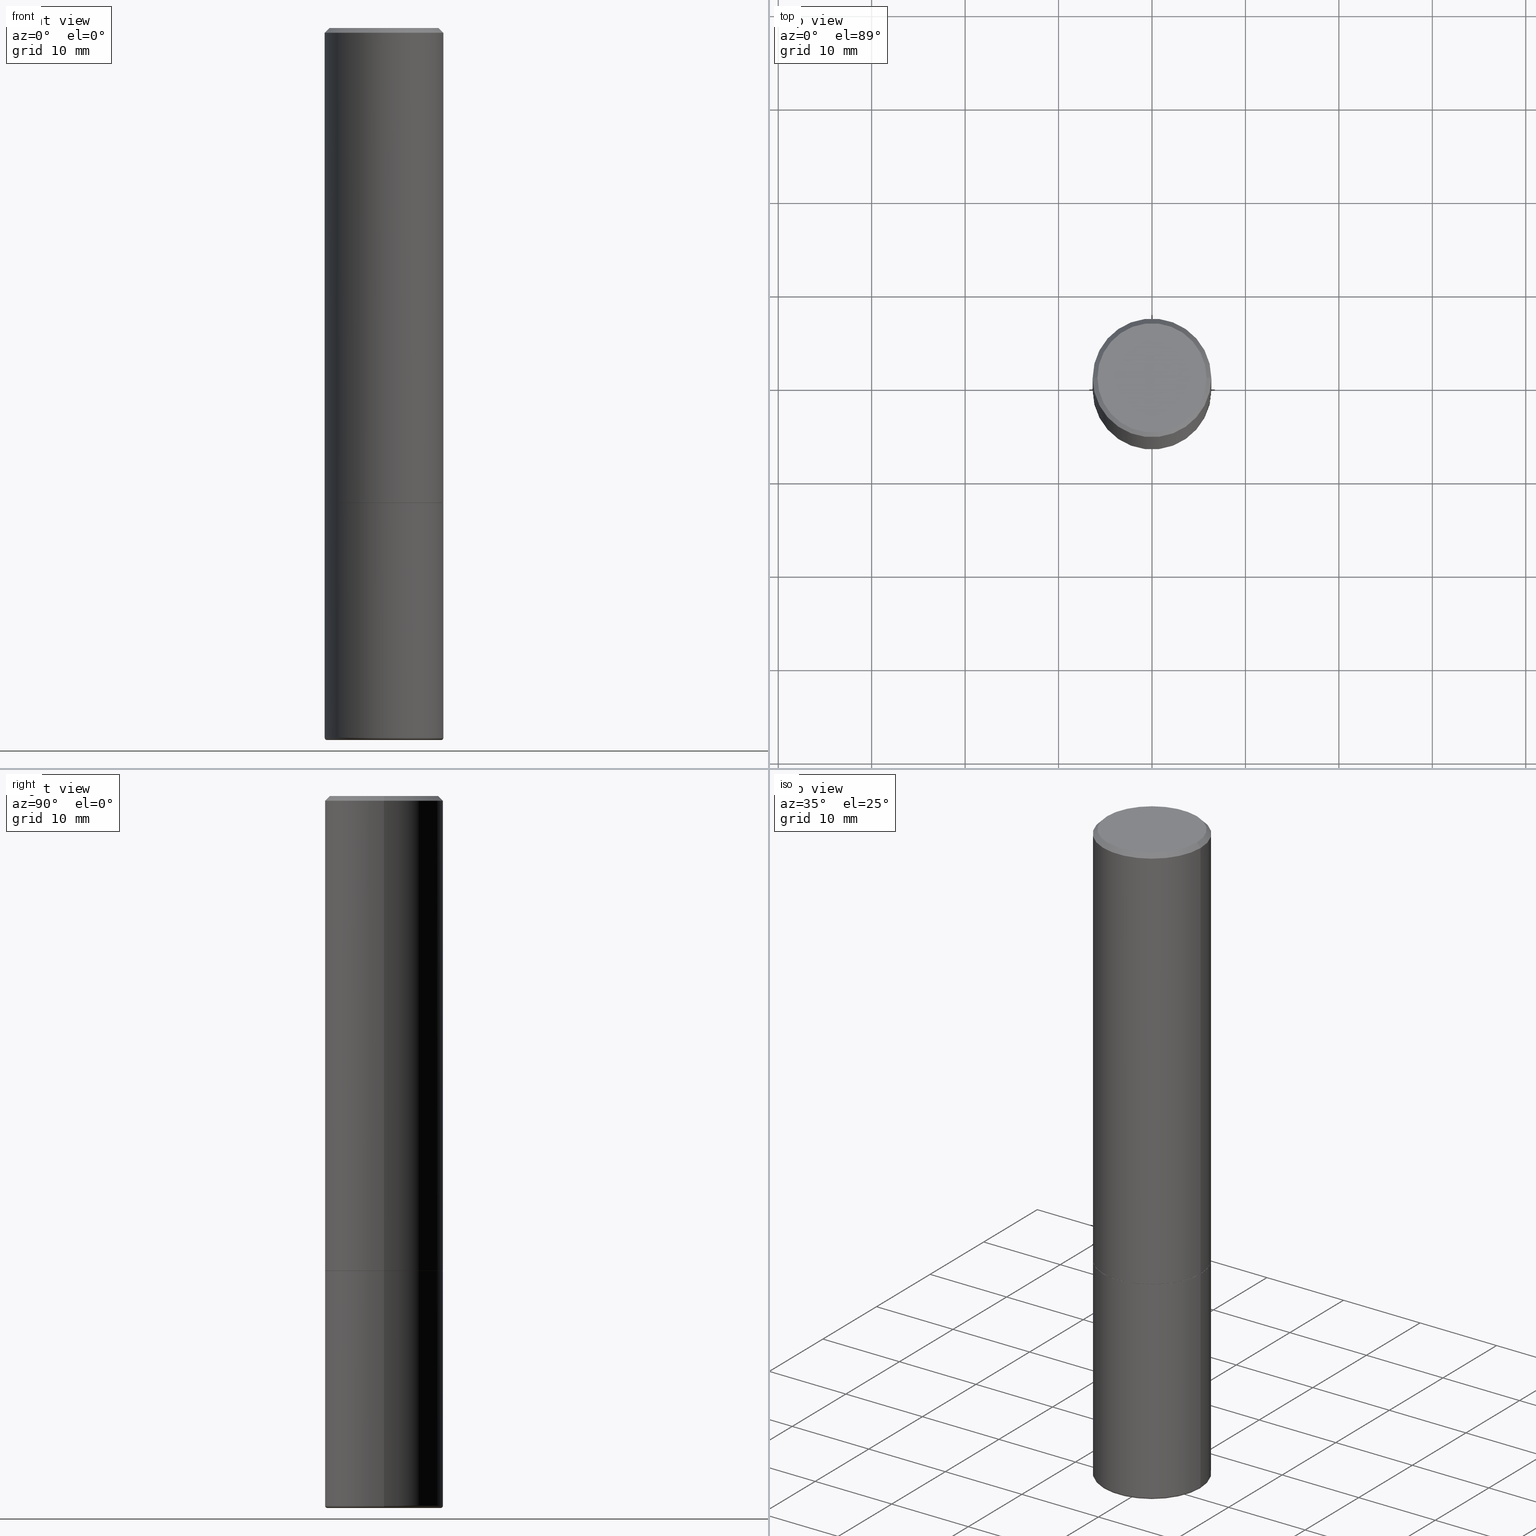
[diagram: canonical four-view strip — front | top / right | iso, engineering-drawing reading convention]
A machine part, canonical four-view strip (front | top / right | iso — engineering-drawing reading convention). The complete STEP part file that produces these views, byte-faithful:
ISO-10303-21;
HEADER;
FILE_DESCRIPTION (( 'STEP AP203' ),
    '1' );
FILE_NAME ('38836.STEP',
    '2024-03-03T15:59:03',
    ( '' ),
    ( '' ),
    'SwSTEP 2.0',
    'SolidWorks 2023',
    '' );
FILE_SCHEMA (( 'CONFIG_CONTROL_DESIGN' ));
ENDSEC;

DATA;
#1 = CARTESIAN_POINT ( 'NONE',  ( 4.890937612370273754E-29, -6.982962677686291954E-15, -2.000000000000000444 ) ) ;
#2 = PRODUCT_DEFINITION_SHAPE ( 'NONE', 'NONE',  #297 ) ;
#3 = FACE_OUTER_BOUND ( 'NONE', #365, .T. ) ;
#4 = DIRECTION ( 'NONE',  ( -2.445468806185136597E-29, 3.491481338843145583E-15, 1.000000000000000000 ) ) ;
#5 = CLOSED_SHELL ( 'NONE', ( #229, #79, #95, #153, #303, #236, #38, #354 ) ) ;
#6 = AXIS2_PLACEMENT_3D ( 'NONE', #289, #195, #256 ) ;
#7 = ORIENTED_EDGE ( 'NONE', *, *, #336, .T. ) ;
#8 = AXIS2_PLACEMENT_3D ( 'NONE', #138, #262, #204 ) ;
#9 = CARTESIAN_POINT ( 'NONE',  ( -0.2500000000000000000, 1.776356839400250465E-15, -1.229733772563726445E-29 ) ) ;
#10 = DIRECTION ( 'NONE',  ( 1.000000000000000000, -6.982962677686268288E-15, 0.000000000000000000 ) ) ;
#11 = ORIENTED_EDGE ( 'NONE', *, *, #242, .F. ) ;
#12 = PRODUCT_RELATED_PRODUCT_CATEGORY ( 'detail', '', ( #43 ) ) ;
#13 = PLANE ( 'NONE',  #288 ) ;
#14 = AXIS2_PLACEMENT_3D ( 'NONE', #328, #264, #72 ) ;
#15 = PERSON_AND_ORGANIZATION ( #377, #273 ) ;
#16 = DIRECTION ( 'NONE',  ( 1.000000000000000000, -6.982962677686265922E-15, 4.876176775795935793E-29 ) ) ;
#17 = COORDINATED_UNIVERSAL_TIME_OFFSET ( 5, 0, .BEHIND. ) ;
#18 = EDGE_LOOP ( 'NONE', ( #125, #319 ) ) ;
#19 = ORIENTED_EDGE ( 'NONE', *, *, #344, .F. ) ;
#20 = EDGE_CURVE ( 'NONE', #338, #298, #185, .T. ) ;
#21 = APPROVAL_ROLE ( '' ) ;
#22 = VERTEX_POINT ( 'NONE', #251 ) ;
#23 = DIRECTION ( 'NONE',  ( -2.445468806185136597E-29, 3.491481338843145583E-15, 1.000000000000000000 ) ) ;
#24 = ADVANCED_FACE ( 'NONE', ( #183 ), #92, .F. ) ;
#25 = DIRECTION ( 'NONE',  ( -1.000000000000000000, 6.982962677686266711E-15, 0.000000000000000000 ) ) ;
#26 = CIRCLE ( 'NONE', #300, 0.2299999999999999267 ) ;
#27 = COORDINATED_UNIVERSAL_TIME_OFFSET ( 5, 0, .BEHIND. ) ;
#28 = CC_DESIGN_APPROVAL ( #58, ( #334 ) ) ;
#29 = FACE_OUTER_BOUND ( 'NONE', #86, .T. ) ;
#30 = ADVANCED_FACE ( 'NONE', ( #340 ), #40, .T. ) ;
#31 = FACE_OUTER_BOUND ( 'NONE', #191, .T. ) ;
#32 = APPROVAL_PERSON_ORGANIZATION ( #182, #58, #211 ) ;
#33 = LINE ( 'NONE', #237, #62 ) ;
#34 = ORIENTED_EDGE ( 'NONE', *, *, #349, .T. ) ;
#35 = DIRECTION ( 'NONE',  ( 1.000000000000000000, -6.982962677686267499E-15, 4.876176775795936353E-29 ) ) ;
#36 = ORIENTED_EDGE ( 'NONE', *, *, #224, .T. ) ;
#37 = CARTESIAN_POINT ( 'NONE',  ( 7.311951730493558245E-29, -1.043952920314100628E-14, -2.990000000000000213 ) ) ;
#38 = ADVANCED_FACE ( 'NONE', ( #278 ), #13, .F. ) ;
#39 = LINE ( 'NONE', #110, #203 ) ;
#40 = TOROIDAL_SURFACE ( 'NONE', #68, 0.2399999999999999911, 0.009999999999999807654 ) ;
#41 = ORIENTED_EDGE ( 'NONE', *, *, #408, .T. ) ;
#42 = FACE_OUTER_BOUND ( 'NONE', #18, .T. ) ;
#43 = PRODUCT ( '38836', '38836', '', ( #119 ) ) ;
#44 = APPROVAL ( #148, 'UNSPECIFIED' ) ;
#45 = EDGE_LOOP ( 'NONE', ( #370, #139 ) ) ;
#46 = DIRECTION ( 'NONE',  ( 0.000000000000000000, 0.000000000000000000, 1.000000000000000000 ) ) ;
#47 = VERTEX_POINT ( 'NONE', #152 ) ;
#48 = CIRCLE ( 'NONE', #411, 0.2400000000000000466 ) ;
#49 = ORIENTED_EDGE ( 'NONE', *, *, #381, .T. ) ;
#50 = PERSON_AND_ORGANIZATION ( #377, #273 ) ;
#51 = EDGE_LOOP ( 'NONE', ( #248, #307, #243, #81 ) ) ;
#52 = EDGE_CURVE ( 'NONE', #268, #403, #101, .T. ) ;
#53 = DIRECTION ( 'NONE',  ( 1.000000000000000000, 0.000000000000000000, 0.000000000000000000 ) ) ;
#54 = VERTEX_POINT ( 'NONE', #98 ) ;
#55 = CIRCLE ( 'NONE', #94, 0.2500000000000000000 ) ;
#56 = DATE_AND_TIME ( #163, #166 ) ;
#57 = DIRECTION ( 'NONE',  ( -2.445468806185136597E-29, 3.491481338843145583E-15, 1.000000000000000000 ) ) ;
#58 = APPROVAL ( #306, 'UNSPECIFIED' ) ;
#59 = CARTESIAN_POINT ( 'NONE',  ( 0.000000000000000000, 0.000000000000000000, 0.000000000000000000 ) ) ;
#60 = DIRECTION ( 'NONE',  ( -1.000000000000000000, 6.982962677686266711E-15, 0.000000000000000000 ) ) ;
#61 = APPLICATION_CONTEXT ( 'configuration controlled 3d designs of mechanical parts and assemblies' ) ;
#62 = VECTOR ( 'NONE', #361, 39.37007874015748143 ) ;
#63 = APPROVAL_DATE_TIME ( #56, #71 ) ;
#64 = CARTESIAN_POINT ( 'NONE',  ( 4.890937612370273754E-29, -6.982962677686291954E-15, -2.000000000000000444 ) ) ;
#65 = DIRECTION ( 'NONE',  ( -0.7071067811866078578, 7.493145998870571886E-15, 0.7071067811864871766 ) ) ;
#66 = CC_DESIGN_DATE_AND_TIME_ASSIGNMENT ( #124, #406, ( #297 ) ) ;
#67 = DIRECTION ( 'NONE',  ( 1.000000000000000000, -6.982962677686268288E-15, 0.000000000000000000 ) ) ;
#68 = AXIS2_PLACEMENT_3D ( 'NONE', #187, #121, #151 ) ;
#69 = CARTESIAN_POINT ( 'NONE',  ( -0.2500000000000000000, -6.934889101013398653E-15, -2.000000000000000444 ) ) ;
#70 = EDGE_LOOP ( 'NONE', ( #159, #19 ) ) ;
#71 = APPROVAL ( #255, 'UNSPECIFIED' ) ;
#72 = DIRECTION ( 'NONE',  ( -1.000000000000000000, 6.982962677686265922E-15, -4.876176775795935793E-29 ) ) ;
#73 = ORIENTED_EDGE ( 'NONE', *, *, #368, .T. ) ;
#74 = CARTESIAN_POINT ( 'NONE',  ( 0.000000000000000000, 0.000000000000000000, 0.000000000000000000 ) ) ;
#75 = CARTESIAN_POINT ( 'NONE',  ( 0.000000000000000000, 0.000000000000000000, 0.000000000000000000 ) ) ;
#76 = AXIS2_PLACEMENT_3D ( 'NONE', #64, #169, #291 ) ;
#77 = CIRCLE ( 'NONE', #405, 0.2400000000000000466 ) ;
#78 = VERTEX_POINT ( 'NONE', #382 ) ;
#79 = ADVANCED_FACE ( 'NONE', ( #253 ), #97, .T. ) ;
#80 = PERSON_AND_ORGANIZATION ( #377, #273 ) ;
#81 = ORIENTED_EDGE ( 'NONE', *, *, #172, .F. ) ;
#82 = APPROVAL_DATE_TIME ( #113, #44 ) ;
#83 = ORIENTED_EDGE ( 'NONE', *, *, #349, .F. ) ;
#84 = PERSON_AND_ORGANIZATION_ROLE ( 'design_supplier' ) ;
#85 = CLOSED_SHELL ( 'NONE', ( #271, #197, #24, #392, #30, #126 ) ) ;
#86 = EDGE_LOOP ( 'NONE', ( #111, #331 ) ) ;
#87 = AXIS2_PLACEMENT_3D ( 'NONE', #353, #225, #167 ) ;
#88 = APPROVAL_PERSON_ORGANIZATION ( #213, #71, #21 ) ;
#89 = DATE_TIME_ROLE ( 'classification_date' ) ;
#90 = ORIENTED_EDGE ( 'NONE', *, *, #160, .F. ) ;
#91 = DIRECTION ( 'NONE',  ( 1.000000000000000000, -6.982962677686266711E-15, 0.000000000000000000 ) ) ;
#92 = PLANE ( 'NONE',  #142 ) ;
#93 = FACE_OUTER_BOUND ( 'NONE', #329, .T. ) ;
#94 = AXIS2_PLACEMENT_3D ( 'NONE', #360, #295, #108 ) ;
#95 = ADVANCED_FACE ( 'NONE', ( #380 ), #259, .T. ) ;
#96 = SECURITY_CLASSIFICATION ( '', '', #400 ) ;
#97 = CYLINDRICAL_SURFACE ( 'NONE', #383, 0.2500000000000001110 ) ;
#98 = CARTESIAN_POINT ( 'NONE',  ( 0.2299999999999999267, -1.681434332853598617E-15, 4.695363739111602110E-17 ) ) ;
#99 = MANIFOLD_SOLID_BREP ( 'Body-Move/Copy2[2]', #5 ) ;
#100 = DIRECTION ( 'NONE',  ( -2.445468806185136597E-29, 3.491481338843145583E-15, 1.000000000000000000 ) ) ;
#101 = CIRCLE ( 'NONE', #158, 0.009999999999999790307 ) ;
#102 = LOCAL_TIME ( 10, 59, 3.000000000000000000, #157 ) ;
#103 = EDGE_CURVE ( 'NONE', #338, #268, #48, .T. ) ;
#104 = CARTESIAN_POINT ( 'NONE',  ( 4.890937612370287172E-31, -6.982962677686310098E-17, -0.02000000000000005593 ) ) ;
#105 = CARTESIAN_POINT ( 'NONE',  ( 0.2489999999999999991, -8.721720384430172617E-15, -2.000000000000000444 ) ) ;
#106 = DIRECTION ( 'NONE',  ( -2.445468806185136597E-29, 3.491481338843145583E-15, 1.000000000000000000 ) ) ;
#107 = EDGE_CURVE ( 'NONE', #54, #47, #26, .T. ) ;
#108 = DIRECTION ( 'NONE',  ( 1.000000000000000000, -6.982962677686266711E-15, 0.000000000000000000 ) ) ;
#109 = ORIENTED_EDGE ( 'NONE', *, *, #368, .F. ) ;
#110 = CARTESIAN_POINT ( 'NONE',  ( -0.2500000000000001110, 1.776356839400251254E-15, -1.229733772563727146E-29 ) ) ;
#111 = ORIENTED_EDGE ( 'NONE', *, *, #413, .F. ) ;
#112 = DIRECTION ( 'NONE',  ( -2.445468806185136597E-29, 3.491481338843145583E-15, 1.000000000000000000 ) ) ;
#113 = DATE_AND_TIME ( #154, #282 ) ;
#114 = AXIS2_PLACEMENT_3D ( 'NONE', #75, #235, #35 ) ;
#115 = ORIENTED_EDGE ( 'NONE', *, *, #186, .F. ) ;
#116 = PERSON_AND_ORGANIZATION ( #377, #273 ) ;
#117 = DIRECTION ( 'NONE',  ( -6.982962677686266711E-15, -1.000000000000000000, 3.491481338843145583E-15 ) ) ;
#118 = EDGE_CURVE ( 'NONE', #389, #22, #404, .T. ) ;
#119 = MECHANICAL_CONTEXT ( 'NONE', #193, 'mechanical' ) ;
#120 = AXIS2_PLACEMENT_3D ( 'NONE', #375, #217, #210 ) ;
#121 = DIRECTION ( 'NONE',  ( -2.445468806185136597E-29, 3.491481338843145583E-15, 1.000000000000000000 ) ) ;
#122 = CIRCLE ( 'NONE', #6, 0.2500000000000000000 ) ;
#123 = AXIS2_PLACEMENT_3D ( 'NONE', #74, #202, #326 ) ;
#124 = DATE_AND_TIME ( #209, #102 ) ;
#125 = ORIENTED_EDGE ( 'NONE', *, *, #180, .T. ) ;
#126 = ADVANCED_FACE ( 'NONE', ( #29 ), #293, .T. ) ;
#127 = ORIENTED_EDGE ( 'NONE', *, *, #186, .T. ) ;
#128 = LINE ( 'NONE', #131, #395 ) ;
#129 = CONICAL_SURFACE ( 'NONE', #135, 0.2500000000000000000, 0.7853981633974472798 ) ;
#130 = CC_DESIGN_APPROVAL ( #71, ( #96 ) ) ;
#131 = CARTESIAN_POINT ( 'NONE',  ( 0.2500000000000001110, -1.745740669421567664E-15, 1.219044193948984649E-29 ) ) ;
#132 = LINE ( 'NONE', #355, #350 ) ;
#133 = DIMENSIONAL_EXPONENTS ( 1.000000000000000000, 0.000000000000000000, 0.000000000000000000, 0.000000000000000000, 0.000000000000000000, 0.000000000000000000, 0.000000000000000000 ) ;
#134 = DIRECTION ( 'NONE',  ( -2.445468806185136597E-29, 3.491481338843145583E-15, 1.000000000000000000 ) ) ;
#135 = AXIS2_PLACEMENT_3D ( 'NONE', #104, #418, #25 ) ;
#136 = APPROVAL_PERSON_ORGANIZATION ( #50, #44, #270 ) ;
#137 = CARTESIAN_POINT ( 'NONE',  ( -0.2500000000000002220, -1.748293572161901516E-15, -1.999000000000000110 ) ) ;
#138 = CARTESIAN_POINT ( 'NONE',  ( 4.890937612370287172E-31, -6.982962677686310098E-17, -0.02000000000000005593 ) ) ;
#139 = ORIENTED_EDGE ( 'NONE', *, *, #249, .T. ) ;
#140 = CARTESIAN_POINT ( 'NONE',  ( 4.888492143564088712E-29, -6.979471196347448158E-15, -1.999000000000000110 ) ) ;
#141 = VERTEX_POINT ( 'NONE', #137 ) ;
#142 = AXIS2_PLACEMENT_3D ( 'NONE', #155, #348, #373 ) ;
#143 = FACE_OUTER_BOUND ( 'NONE', #144, .T. ) ;
#144 = EDGE_LOOP ( 'NONE', ( #11, #367, #41, #161 ) ) ;
#145 = LINE ( 'NONE', #9, #371 ) ;
#146 = ORIENTED_EDGE ( 'NONE', *, *, #20, .T. ) ;
#147 = EDGE_CURVE ( 'NONE', #333, #78, #128, .T. ) ;
#148 = APPROVAL_STATUS ( 'not_yet_approved' ) ;
#149 = AXIS2_PLACEMENT_3D ( 'NONE', #1, #4, #330 ) ;
#150 =( GEOMETRIC_REPRESENTATION_CONTEXT ( 3 ) GLOBAL_UNCERTAINTY_ASSIGNED_CONTEXT ( ( #274 ) ) GLOBAL_UNIT_ASSIGNED_CONTEXT ( ( #397, #192, #281 ) ) REPRESENTATION_CONTEXT ( 'NONE', 'WORKASPACE' ) );
#151 = DIRECTION ( 'NONE',  ( 1.000000000000000000, -6.982962677686269077E-15, 4.883557194083114022E-29 ) ) ;
#152 = CARTESIAN_POINT ( 'NONE',  ( -0.2299999999999999267, 1.640996229256272519E-15, 4.695363739109317495E-17 ) ) ;
#153 = ADVANCED_FACE ( 'NONE', ( #385 ), #129, .T. ) ;
#154 = CALENDAR_DATE ( 2024, 3, 3 ) ;
#155 = CARTESIAN_POINT ( 'NONE',  ( 4.890937612370273754E-29, -6.982962677686291954E-15, -2.000000000000000444 ) ) ;
#156 = DESIGN_CONTEXT ( 'detailed design', #61, 'design' ) ;
#157 = COORDINATED_UNIVERSAL_TIME_OFFSET ( 5, 0, .BEHIND. ) ;
#158 = AXIS2_PLACEMENT_3D ( 'NONE', #401, #117, #379 ) ;
#159 = ORIENTED_EDGE ( 'NONE', *, *, #118, .F. ) ;
#160 = EDGE_CURVE ( 'NONE', #389, #333, #132, .T. ) ;
#161 = ORIENTED_EDGE ( 'NONE', *, *, #249, .F. ) ;
#162 = CARTESIAN_POINT ( 'NONE',  ( -1.148236555768741665E-45, 1.639377487418492057E-31, 4.695363739110452099E-17 ) ) ;
#163 = CALENDAR_DATE ( 2024, 3, 3 ) ;
#164 = DIRECTION ( 'NONE',  ( 0.7071067811866078578, -2.468850131082888544E-15, 0.7071067811864871766 ) ) ;
#165 = CONICAL_SURFACE ( 'NONE', #280, 0.2489999999999999991, 0.7853981633975336552 ) ;
#166 = LOCAL_TIME ( 10, 59, 3.000000000000000000, #27 ) ;
#167 = DIRECTION ( 'NONE',  ( 1.000000000000000000, -6.982962677686267499E-15, 4.875813741439101456E-29 ) ) ;
#168 = CC_DESIGN_DATE_AND_TIME_ASSIGNMENT ( #369, #89, ( #96 ) ) ;
#169 = DIRECTION ( 'NONE',  ( -2.445468806185136597E-29, 3.491481338843145583E-15, 1.000000000000000000 ) ) ;
#170 = CARTESIAN_POINT ( 'NONE',  ( 4.890937612370273754E-29, -6.982962677686291954E-15, -2.000000000000000444 ) ) ;
#171 = AXIS2_PLACEMENT_3D ( 'NONE', #287, #351, #60 ) ;
#172 = EDGE_CURVE ( 'NONE', #298, #403, #122, .T. ) ;
#173 = CARTESIAN_POINT ( 'NONE',  ( 0.000000000000000000, 0.000000000000000000, 0.000000000000000000 ) ) ;
#174 = LINE ( 'NONE', #230, #294 ) ;
#175 = EDGE_LOOP ( 'NONE', ( #49, #284, #189, #233 ) ) ;
#176 = DIRECTION ( 'NONE',  ( 1.000000000000000000, -6.982962677686266711E-15, 0.000000000000000000 ) ) ;
#177 = ORIENTED_EDGE ( 'NONE', *, *, #336, .F. ) ;
#178 = AXIS2_PLACEMENT_3D ( 'NONE', #205, #106, #10 ) ;
#179 = DIRECTION ( 'NONE',  ( -2.445468806185136877E-29, 3.491481338843145188E-15, 1.000000000000000000 ) ) ;
#180 = EDGE_CURVE ( 'NONE', #47, #54, #266, .T. ) ;
#181 = CARTESIAN_POINT ( 'NONE',  ( 0.2400000000000000466, -1.215035505917413973E-14, -2.999999999999999556 ) ) ;
#182 = PERSON_AND_ORGANIZATION ( #377, #273 ) ;
#183 = FACE_OUTER_BOUND ( 'NONE', #45, .T. ) ;
#184 = COORDINATED_UNIVERSAL_TIME_OFFSET ( 5, 0, .BEHIND. ) ;
#185 = CIRCLE ( 'NONE', #120, 0.009999999999999790307 ) ;
#186 = EDGE_CURVE ( 'NONE', #54, #78, #290, .T. ) ;
#187 = CARTESIAN_POINT ( 'NONE',  ( 7.311951730493558245E-29, -1.043952920314100628E-14, -2.990000000000000213 ) ) ;
#188 = DATE_AND_TIME ( #190, #254 ) ;
#189 = ORIENTED_EDGE ( 'NONE', *, *, #219, .F. ) ;
#190 = CALENDAR_DATE ( 2024, 3, 3 ) ;
#191 = EDGE_LOOP ( 'NONE', ( #312, #409, #310, #315 ) ) ;
#192 =( NAMED_UNIT ( * ) PLANE_ANGLE_UNIT ( ) SI_UNIT ( $, .RADIAN. ) );
#193 = APPLICATION_CONTEXT ( 'configuration controlled 3d designs of mechanical parts and assemblies' ) ;
#194 = AXIS2_PLACEMENT_3D ( 'NONE', #140, #357, #67 ) ;
#195 = DIRECTION ( 'NONE',  ( -2.445468806185136597E-29, 3.491481338843145583E-15, 1.000000000000000000 ) ) ;
#196 = CARTESIAN_POINT ( 'NONE',  ( 7.336406418555408669E-29, -1.047444401652943478E-14, -2.999999999999999556 ) ) ;
#197 = ADVANCED_FACE ( 'NONE', ( #228 ), #207, .T. ) ;
#198 = DIRECTION ( 'NONE',  ( 1.000000000000000000, -6.982962677686266711E-15, 0.000000000000000000 ) ) ;
#199 = CIRCLE ( 'NONE', #194, 0.2500000000000002220 ) ;
#200 = DIRECTION ( 'NONE',  ( 1.000000000000000000, -6.982962677686269077E-15, 4.883557194083114022E-29 ) ) ;
#201 = CARTESIAN_POINT ( 'NONE',  ( 4.890937612370273754E-29, -6.982962677686291954E-15, -2.000000000000000444 ) ) ;
#202 = DIRECTION ( 'NONE',  ( -2.445468806185136597E-29, 3.491481338843145583E-15, 1.000000000000000000 ) ) ;
#203 = VECTOR ( 'NONE', #358, 39.37007874015748143 ) ;
#204 = DIRECTION ( 'NONE',  ( 1.000000000000000000, -6.982962677686266711E-15, 0.000000000000000000 ) ) ;
#205 = CARTESIAN_POINT ( 'NONE',  ( 4.888492143564088712E-29, -6.979471196347448158E-15, -1.999000000000000110 ) ) ;
#206 = PLANE ( 'NONE',  #14 ) ;
#207 = TOROIDAL_SURFACE ( 'NONE', #322, 0.2399999999999999911, 0.009999999999999807654 ) ;
#208 = DIRECTION ( 'NONE',  ( 1.000000000000000000, -6.982962677686266711E-15, 4.876176775795935793E-29 ) ) ;
#209 = CALENDAR_DATE ( 2024, 3, 3 ) ;
#210 = DIRECTION ( 'NONE',  ( -1.000000000000000000, 7.105427357600978193E-15, 0.000000000000000000 ) ) ;
#211 = APPROVAL_ROLE ( '' ) ;
#212 = DIRECTION ( 'NONE',  ( -2.438088387897960049E-29, 3.491481338843145188E-15, 1.000000000000000000 ) ) ;
#213 = PERSON_AND_ORGANIZATION ( #377, #273 ) ;
#214 = AXIS2_PLACEMENT_3D ( 'NONE', #173, #112, #208 ) ;
#215 = CC_DESIGN_APPROVAL ( #44, ( #297 ) ) ;
#216 = ORIENTED_EDGE ( 'NONE', *, *, #147, .F. ) ;
#217 = DIRECTION ( 'NONE',  ( 7.105427357601001859E-15, 1.000000000000000000, -3.491481338843145583E-15 ) ) ;
#218 = ORIENTED_EDGE ( 'NONE', *, *, #292, .T. ) ;
#219 = EDGE_CURVE ( 'NONE', #245, #362, #247, .T. ) ;
#220 = AXIS2_PLACEMENT_3D ( 'NONE', #352, #258, #410 ) ;
#221 = DIRECTION ( 'NONE',  ( -2.445468806185136597E-29, 3.491481338843145583E-15, 1.000000000000000000 ) ) ;
#222 = AXIS2_PLACEMENT_3D ( 'NONE', #37, #386, #299 ) ;
#223 = DIRECTION ( 'NONE',  ( 1.000000000000000000, -6.982962677686267499E-15, 4.875813741439101456E-29 ) ) ;
#224 = EDGE_CURVE ( 'NONE', #22, #141, #415, .T. ) ;
#225 = DIRECTION ( 'NONE',  ( -2.445468806185136597E-29, 3.491481338843145583E-15, 1.000000000000000000 ) ) ;
#226 = DIRECTION ( 'NONE',  ( 1.000000000000000000, -6.982962677686266711E-15, 0.000000000000000000 ) ) ;
#227 = VECTOR ( 'NONE', #65, 39.37007874015748143 ) ;
#228 = FACE_OUTER_BOUND ( 'NONE', #265, .T. ) ;
#229 = ADVANCED_FACE ( 'NONE', ( #93 ), #165, .T. ) ;
#230 = CARTESIAN_POINT ( 'NONE',  ( 0.2500000000000000000, -1.745740669421566678E-15, 1.219044193948983948E-29 ) ) ;
#231 = MANIFOLD_SOLID_BREP ( 'Body-Move/Copy2[1]', #85 ) ;
#232 = CYLINDRICAL_SURFACE ( 'NONE', #123, 0.2500000000000000000 ) ;
#233 = ORIENTED_EDGE ( 'NONE', *, *, #408, .F. ) ;
#234 = CIRCLE ( 'NONE', #342, 0.2500000000000000000 ) ;
#235 = DIRECTION ( 'NONE',  ( -2.445468806185136597E-29, 3.491481338843145583E-15, 1.000000000000000000 ) ) ;
#236 = ADVANCED_FACE ( 'NONE', ( #31 ), #378, .T. ) ;
#237 = CARTESIAN_POINT ( 'NONE',  ( -0.2500000000000000000, 1.675911042644703577E-15, -0.02000000000000005593 ) ) ;
#238 = ORIENTED_EDGE ( 'NONE', *, *, #381, .F. ) ;
#239 = CARTESIAN_POINT ( 'NONE',  ( -0.2499999999999998890, -8.663172363740755817E-15, -2.990000000000000213 ) ) ;
#240 = EDGE_LOOP ( 'NONE', ( #398, #127, #7, #250 ) ) ;
#241 = DIRECTION ( 'NONE',  ( -2.445468806185136597E-29, 3.491481338843145583E-15, 1.000000000000000000 ) ) ;
#242 = EDGE_CURVE ( 'NONE', #298, #362, #145, .T. ) ;
#243 = ORIENTED_EDGE ( 'NONE', *, *, #52, .T. ) ;
#244 = PERSON_AND_ORGANIZATION_ROLE ( 'classification_officer' ) ;
#245 = VERTEX_POINT ( 'NONE', #269 ) ;
#246 = APPROVAL_DATE_TIME ( #188, #58 ) ;
#247 = CIRCLE ( 'NONE', #76, 0.2500000000000000000 ) ;
#248 = ORIENTED_EDGE ( 'NONE', *, *, #20, .F. ) ;
#249 = EDGE_CURVE ( 'NONE', #362, #245, #234, .T. ) ;
#250 = ORIENTED_EDGE ( 'NONE', *, *, #292, .F. ) ;
#251 = CARTESIAN_POINT ( 'NONE',  ( -0.2489999999999999991, -5.208412811295419307E-15, -2.000000000000000444 ) ) ;
#252 = CIRCLE ( 'NONE', #8, 0.2500000000000000000 ) ;
#253 = FACE_OUTER_BOUND ( 'NONE', #276, .T. ) ;
#254 = LOCAL_TIME ( 10, 59, 3.000000000000000000, #184 ) ;
#255 = APPROVAL_STATUS ( 'not_yet_approved' ) ;
#256 = DIRECTION ( 'NONE',  ( 1.000000000000000000, -6.982962677686262766E-15, 0.000000000000000000 ) ) ;
#257 = DIRECTION ( 'NONE',  ( 0.7071067811865467956, -7.319954787623254468E-15, -0.7071067811865482389 ) ) ;
#258 = DIRECTION ( 'NONE',  ( 2.438088387897960049E-29, -3.491481338843145188E-15, -1.000000000000000000 ) ) ;
#259 = CONICAL_SURFACE ( 'NONE', #171, 0.2500000000000000000, 0.7853981633974472798 ) ;
#260 = CIRCLE ( 'NONE', #222, 0.2500000000000000000 ) ;
#261 = CARTESIAN_POINT ( 'NONE',  ( 0.2500000000000002220, -8.725211865769017202E-15, -1.999000000000000110 ) ) ;
#262 = DIRECTION ( 'NONE',  ( -2.445468806185136597E-29, 3.491481338843145583E-15, 1.000000000000000000 ) ) ;
#263 = ORIENTED_EDGE ( 'NONE', *, *, #413, .T. ) ;
#264 = DIRECTION ( 'NONE',  ( 2.438088387897960049E-29, -3.491481338843145188E-15, -1.000000000000000000 ) ) ;
#265 = EDGE_LOOP ( 'NONE', ( #263, #146, #238, #391 ) ) ;
#266 = CIRCLE ( 'NONE', #87, 0.2299999999999999267 ) ;
#267 = CARTESIAN_POINT ( 'NONE',  ( 0.2499999999999998890, -1.218526987256257138E-14, -2.990000000000000213 ) ) ;
#268 = VERTEX_POINT ( 'NONE', #181 ) ;
#269 = CARTESIAN_POINT ( 'NONE',  ( 0.2500000000000000000, -8.728703347107858632E-15, -2.000000000000000444 ) ) ;
#270 = APPROVAL_ROLE ( '' ) ;
#271 = ADVANCED_FACE ( 'NONE', ( #387 ), #393, .T. ) ;
#272 = ORIENTED_EDGE ( 'NONE', *, *, #147, .T. ) ;
#273 = ORGANIZATION ( 'UNSPECIFIED', 'UNSPECIFIED', '' ) ;
#274 = UNCERTAINTY_MEASURE_WITH_UNIT (LENGTH_MEASURE( 1.000000000000000082E-05 ), #397, 'distance_accuracy_value', 'NONE');
#275 = ORIENTED_EDGE ( 'NONE', *, *, #286, .T. ) ;
#276 = EDGE_LOOP ( 'NONE', ( #73, #34, #177, #216 ) ) ;
#277 = PERSON_AND_ORGANIZATION_ROLE ( 'creator' ) ;
#278 = FACE_OUTER_BOUND ( 'NONE', #70, .T. ) ;
#279 = CC_DESIGN_PERSON_AND_ORGANIZATION_ASSIGNMENT ( #116, #244, ( #96 ) ) ;
#280 = AXIS2_PLACEMENT_3D ( 'NONE', #201, #325, #320 ) ;
#281 =( NAMED_UNIT ( * ) SI_UNIT ( $, .STERADIAN. ) SOLID_ANGLE_UNIT ( ) );
#282 = LOCAL_TIME ( 10, 59, 3.000000000000000000, #17 ) ;
#283 = EDGE_LOOP ( 'NONE', ( #115, #302, #218, #305 ) ) ;
#284 = ORIENTED_EDGE ( 'NONE', *, *, #242, .T. ) ;
#285 = SHAPE_DEFINITION_REPRESENTATION ( #2, #341 ) ;
#286 = EDGE_CURVE ( 'NONE', #141, #333, #199, .T. ) ;
#287 = CARTESIAN_POINT ( 'NONE',  ( 4.890937612370287172E-31, -6.982962677686310098E-17, -0.02000000000000005593 ) ) ;
#288 = AXIS2_PLACEMENT_3D ( 'NONE', #346, #212, #16 ) ;
#289 = CARTESIAN_POINT ( 'NONE',  ( 7.311951730493558245E-29, -1.043952920314100628E-14, -2.990000000000000213 ) ) ;
#290 = LINE ( 'NONE', #414, #359 ) ;
#291 = DIRECTION ( 'NONE',  ( 1.000000000000000000, -6.982962677686266711E-15, 0.000000000000000000 ) ) ;
#292 = EDGE_CURVE ( 'NONE', #47, #345, #33, .T. ) ;
#293 = PLANE ( 'NONE',  #220 ) ;
#294 = VECTOR ( 'NONE', #390, 39.37007874015748143 ) ;
#295 = DIRECTION ( 'NONE',  ( -2.445468806185136597E-29, 3.491481338843145583E-15, 1.000000000000000000 ) ) ;
#296 = CARTESIAN_POINT ( 'NONE',  ( 7.336406418555408669E-29, -1.047444401652943478E-14, -2.999999999999999556 ) ) ;
#297 = PRODUCT_DEFINITION ( 'UNKNOWN', '', #334, #156 ) ;
#298 = VERTEX_POINT ( 'NONE', #239 ) ;
#299 = DIRECTION ( 'NONE',  ( 1.000000000000000000, -6.982962677686262766E-15, 0.000000000000000000 ) ) ;
#300 = AXIS2_PLACEMENT_3D ( 'NONE', #162, #57, #223 ) ;
#301 = DIRECTION ( 'NONE',  ( -2.445468806185136597E-29, 3.491481338843145583E-15, 1.000000000000000000 ) ) ;
#302 = ORIENTED_EDGE ( 'NONE', *, *, #180, .F. ) ;
#303 = ADVANCED_FACE ( 'NONE', ( #3 ), #363, .T. ) ;
#304 = CARTESIAN_POINT ( 'NONE',  ( -0.2400000000000000466, -8.716156907222976683E-15, -2.999999999999999556 ) ) ;
#305 = ORIENTED_EDGE ( 'NONE', *, *, #364, .T. ) ;
#306 = APPROVAL_STATUS ( 'not_yet_approved' ) ;
#307 = ORIENTED_EDGE ( 'NONE', *, *, #103, .T. ) ;
#308 = AXIS2_PLACEMENT_3D ( 'NONE', #323, #134, #226 ) ;
#309 = PERSON_AND_ORGANIZATION ( #377, #273 ) ;
#310 = ORIENTED_EDGE ( 'NONE', *, *, #160, .T. ) ;
#311 = PERSON_AND_ORGANIZATION_ROLE ( 'creator' ) ;
#312 = ORIENTED_EDGE ( 'NONE', *, *, #224, .F. ) ;
#313 = CC_DESIGN_PERSON_AND_ORGANIZATION_ASSIGNMENT ( #366, #311, ( #297 ) ) ;
#314 =( LENGTH_UNIT ( ) NAMED_UNIT ( * ) SI_UNIT ( $, .METRE. ) );
#315 = ORIENTED_EDGE ( 'NONE', *, *, #286, .F. ) ;
#316 = AXIS2_PLACEMENT_3D ( 'NONE', #170, #23, #332 ) ;
#317 = APPLICATION_PROTOCOL_DEFINITION ( 'international standard', 'config_control_design', 1994, #61 ) ;
#318 = CC_DESIGN_SECURITY_CLASSIFICATION ( #96, ( #334 ) ) ;
#319 = ORIENTED_EDGE ( 'NONE', *, *, #107, .T. ) ;
#320 = DIRECTION ( 'NONE',  ( 1.000000000000000000, -6.982962677686266711E-15, 0.000000000000000000 ) ) ;
#321 = DIRECTION ( 'NONE',  ( -2.445468806185136877E-29, 3.491481338843145188E-15, 1.000000000000000000 ) ) ;
#322 = AXIS2_PLACEMENT_3D ( 'NONE', #376, #221, #200 ) ;
#323 = CARTESIAN_POINT ( 'NONE',  ( 4.890937612370273754E-29, -6.982962677686291954E-15, -2.000000000000000444 ) ) ;
#324 = DIRECTION ( 'NONE',  ( -2.445468806185136597E-29, 3.491481338843145583E-15, 1.000000000000000000 ) ) ;
#325 = DIRECTION ( 'NONE',  ( -2.445468806185136597E-29, 3.491481338843145583E-15, 1.000000000000000000 ) ) ;
#326 = DIRECTION ( 'NONE',  ( 1.000000000000000000, -6.982962677686266711E-15, 4.876176775795935793E-29 ) ) ;
#327 = CIRCLE ( 'NONE', #149, 0.2489999999999999991 ) ;
#328 = CARTESIAN_POINT ( 'NONE',  ( 1.606081415867840870E-15, 0.2299999999999999267, -7.795638892383710465E-16 ) ) ;
#329 = EDGE_LOOP ( 'NONE', ( #394, #36, #109, #90 ) ) ;
#330 = DIRECTION ( 'NONE',  ( 1.000000000000000000, -6.982962677686266711E-15, 0.000000000000000000 ) ) ;
#331 = ORIENTED_EDGE ( 'NONE', *, *, #103, .F. ) ;
#332 = DIRECTION ( 'NONE',  ( 1.000000000000000000, -6.982962677686266711E-15, 0.000000000000000000 ) ) ;
#333 = VERTEX_POINT ( 'NONE', #261 ) ;
#334 = PRODUCT_DEFINITION_FORMATION_WITH_SPECIFIED_SOURCE ( 'ANY', '', #43, .NOT_KNOWN. ) ;
#335 = CARTESIAN_POINT ( 'NONE',  ( -0.2500000000000000000, 1.675911042644703577E-15, -0.02000000000000005593 ) ) ;
#336 = EDGE_CURVE ( 'NONE', #78, #345, #55, .T. ) ;
#337 = APPLICATION_PROTOCOL_DEFINITION ( 'international standard', 'config_control_design', 1994, #193 ) ;
#338 = VERTEX_POINT ( 'NONE', #304 ) ;
#339 = CARTESIAN_POINT ( 'NONE',  ( 0.000000000000000000, 0.000000000000000000, 0.000000000000000000 ) ) ;
#340 = FACE_OUTER_BOUND ( 'NONE', #51, .T. ) ;
#341 = ADVANCED_BREP_SHAPE_REPRESENTATION ( '38836', ( #231, #99, #417 ), #150 ) ;
#342 = AXIS2_PLACEMENT_3D ( 'NONE', #388, #301, #176 ) ;
#343 = LENGTH_MEASURE_WITH_UNIT ( LENGTH_MEASURE( 0.02539999999999999897 ), #314 );
#344 = EDGE_CURVE ( 'NONE', #22, #389, #327, .T. ) ;
#345 = VERTEX_POINT ( 'NONE', #335 ) ;
#346 = CARTESIAN_POINT ( 'NONE',  ( 4.890937612370273754E-29, -6.982962677686291954E-15, -2.000000000000000444 ) ) ;
#347 = PERSON_AND_ORGANIZATION_ROLE ( 'design_owner' ) ;
#348 = DIRECTION ( 'NONE',  ( 2.438088387897960049E-29, -3.491481338843145188E-15, -1.000000000000000000 ) ) ;
#349 = EDGE_CURVE ( 'NONE', #141, #345, #39, .T. ) ;
#350 = VECTOR ( 'NONE', #164, 39.37007874015748143 ) ;
#351 = DIRECTION ( 'NONE',  ( 2.445468806185136597E-29, -3.491481338843145583E-15, -1.000000000000000000 ) ) ;
#352 = CARTESIAN_POINT ( 'NONE',  ( 1.210550456377282398E-28, -3.644824032368776532E-15, -2.999999999999999556 ) ) ;
#353 = CARTESIAN_POINT ( 'NONE',  ( -1.148236555768741665E-45, 1.639377487418492057E-31, 4.695363739110452099E-17 ) ) ;
#354 = ADVANCED_FACE ( 'NONE', ( #42 ), #206, .F. ) ;
#355 = CARTESIAN_POINT ( 'NONE',  ( 0.2489999999999999991, -8.721720384430172617E-15, -2.000000000000000444 ) ) ;
#356 = CARTESIAN_POINT ( 'NONE',  ( -0.2489999999999999991, -5.213711265643642498E-15, -2.000000000000000444 ) ) ;
#357 = DIRECTION ( 'NONE',  ( -2.445468806185136597E-29, 3.491481338843145583E-15, 1.000000000000000000 ) ) ;
#358 = DIRECTION ( 'NONE',  ( -2.445468806185136877E-29, 3.491481338843145188E-15, 1.000000000000000000 ) ) ;
#359 = VECTOR ( 'NONE', #257, 39.37007874015748143 ) ;
#360 = CARTESIAN_POINT ( 'NONE',  ( 4.890937612370287172E-31, -6.982962677686310098E-17, -0.02000000000000005593 ) ) ;
#361 = DIRECTION ( 'NONE',  ( -0.7071067811865467956, 2.468850131082249172E-15, -0.7071067811865482389 ) ) ;
#362 = VERTEX_POINT ( 'NONE', #69 ) ;
#363 = CYLINDRICAL_SURFACE ( 'NONE', #114, 0.2500000000000001110 ) ;
#364 = EDGE_CURVE ( 'NONE', #345, #78, #252, .T. ) ;
#365 = EDGE_LOOP ( 'NONE', ( #83, #275, #272, #407 ) ) ;
#366 = PERSON_AND_ORGANIZATION ( #377, #273 ) ;
#367 = ORIENTED_EDGE ( 'NONE', *, *, #172, .T. ) ;
#368 = EDGE_CURVE ( 'NONE', #333, #141, #396, .T. ) ;
#369 = DATE_AND_TIME ( #372, #384 ) ;
#370 = ORIENTED_EDGE ( 'NONE', *, *, #219, .T. ) ;
#371 = VECTOR ( 'NONE', #179, 39.37007874015748143 ) ;
#372 = CALENDAR_DATE ( 2024, 3, 3 ) ;
#373 = DIRECTION ( 'NONE',  ( -1.000000000000000000, 6.982962677686265922E-15, -4.876176775795935793E-29 ) ) ;
#374 = CC_DESIGN_PERSON_AND_ORGANIZATION_ASSIGNMENT ( #309, #277, ( #334 ) ) ;
#375 = CARTESIAN_POINT ( 'NONE',  ( -0.2399999999999999911, -8.734226637316765899E-15, -2.990000000000000213 ) ) ;
#376 = CARTESIAN_POINT ( 'NONE',  ( 7.311951730493558245E-29, -1.043952920314100628E-14, -2.990000000000000213 ) ) ;
#377 = PERSON ( 'UNSPECIFIED', 'UNSPECIFIED', 'UNSPECIFIED', ('UNSPECIFIED'), ('UNSPECIFIED'), ('UNSPECIFIED') ) ;
#378 = CONICAL_SURFACE ( 'NONE', #316, 0.2489999999999999991, 0.7853981633975336552 ) ;
#379 = DIRECTION ( 'NONE',  ( 1.000000000000000000, -6.982962677686284854E-15, 0.000000000000000000 ) ) ;
#380 = FACE_OUTER_BOUND ( 'NONE', #240, .T. ) ;
#381 = EDGE_CURVE ( 'NONE', #403, #298, #260, .T. ) ;
#382 = CARTESIAN_POINT ( 'NONE',  ( 0.2500000000000000000, -1.784954126219746189E-15, -0.02000000000000005593 ) ) ;
#383 = AXIS2_PLACEMENT_3D ( 'NONE', #59, #100, #412 ) ;
#384 = LOCAL_TIME ( 10, 59, 3.000000000000000000, #402 ) ;
#385 = FACE_OUTER_BOUND ( 'NONE', #283, .T. ) ;
#386 = DIRECTION ( 'NONE',  ( -2.445468806185136597E-29, 3.491481338843145583E-15, 1.000000000000000000 ) ) ;
#387 = FACE_OUTER_BOUND ( 'NONE', #175, .T. ) ;
#388 = CARTESIAN_POINT ( 'NONE',  ( 4.890937612370273754E-29, -6.982962677686291954E-15, -2.000000000000000444 ) ) ;
#389 = VERTEX_POINT ( 'NONE', #105 ) ;
#390 = DIRECTION ( 'NONE',  ( -2.445468806185136877E-29, 3.491481338843145188E-15, 1.000000000000000000 ) ) ;
#391 = ORIENTED_EDGE ( 'NONE', *, *, #52, .F. ) ;
#392 = ADVANCED_FACE ( 'NONE', ( #143 ), #232, .T. ) ;
#393 = CYLINDRICAL_SURFACE ( 'NONE', #214, 0.2500000000000000000 ) ;
#394 = ORIENTED_EDGE ( 'NONE', *, *, #118, .T. ) ;
#395 = VECTOR ( 'NONE', #321, 39.37007874015748143 ) ;
#396 = CIRCLE ( 'NONE', #178, 0.2500000000000002220 ) ;
#397 =( CONVERSION_BASED_UNIT ( 'INCH', #343 ) LENGTH_UNIT ( ) NAMED_UNIT ( #133 ) );
#398 = ORIENTED_EDGE ( 'NONE', *, *, #107, .F. ) ;
#399 = CC_DESIGN_PERSON_AND_ORGANIZATION_ASSIGNMENT ( #80, #347, ( #43 ) ) ;
#400 = SECURITY_CLASSIFICATION_LEVEL ( 'unclassified' ) ;
#401 = CARTESIAN_POINT ( 'NONE',  ( 0.2399999999999999911, -1.211544024578571124E-14, -2.990000000000000213 ) ) ;
#402 = COORDINATED_UNIVERSAL_TIME_OFFSET ( 5, 0, .BEHIND. ) ;
#403 = VERTEX_POINT ( 'NONE', #267 ) ;
#404 = CIRCLE ( 'NONE', #308, 0.2489999999999999991 ) ;
#405 = AXIS2_PLACEMENT_3D ( 'NONE', #296, #241, #91 ) ;
#406 = DATE_TIME_ROLE ( 'creation_date' ) ;
#407 = ORIENTED_EDGE ( 'NONE', *, *, #364, .F. ) ;
#408 = EDGE_CURVE ( 'NONE', #403, #245, #174, .T. ) ;
#409 = ORIENTED_EDGE ( 'NONE', *, *, #344, .T. ) ;
#410 = DIRECTION ( 'NONE',  ( -1.000000000000000000, 6.982962677686265922E-15, -4.876176775795935793E-29 ) ) ;
#411 = AXIS2_PLACEMENT_3D ( 'NONE', #196, #324, #198 ) ;
#412 = DIRECTION ( 'NONE',  ( 1.000000000000000000, -6.982962677686267499E-15, 4.876176775795936353E-29 ) ) ;
#413 = EDGE_CURVE ( 'NONE', #268, #338, #77, .T. ) ;
#414 = CARTESIAN_POINT ( 'NONE',  ( 0.2500000000000000000, -1.784954126219746189E-15, -0.02000000000000005593 ) ) ;
#415 = LINE ( 'NONE', #356, #227 ) ;
#416 = CC_DESIGN_PERSON_AND_ORGANIZATION_ASSIGNMENT ( #15, #84, ( #334 ) ) ;
#417 = AXIS2_PLACEMENT_3D ( 'NONE', #339, #46, #53 ) ;
#418 = DIRECTION ( 'NONE',  ( 2.445468806185136597E-29, -3.491481338843145583E-15, -1.000000000000000000 ) ) ;
ENDSEC;
END-ISO-10303-21;
